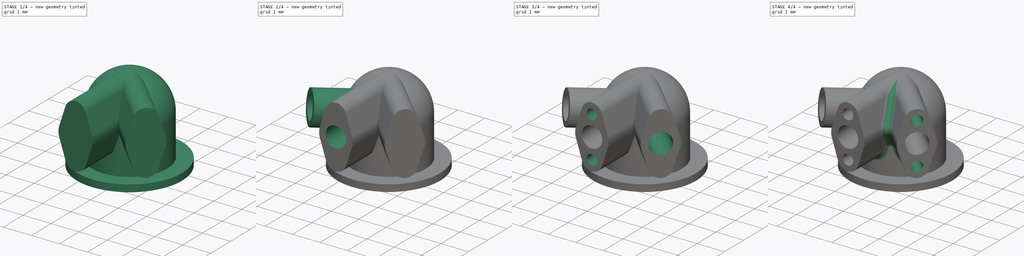
[diagram: build sequence overview — one tinted view per stage of 4, left to right]
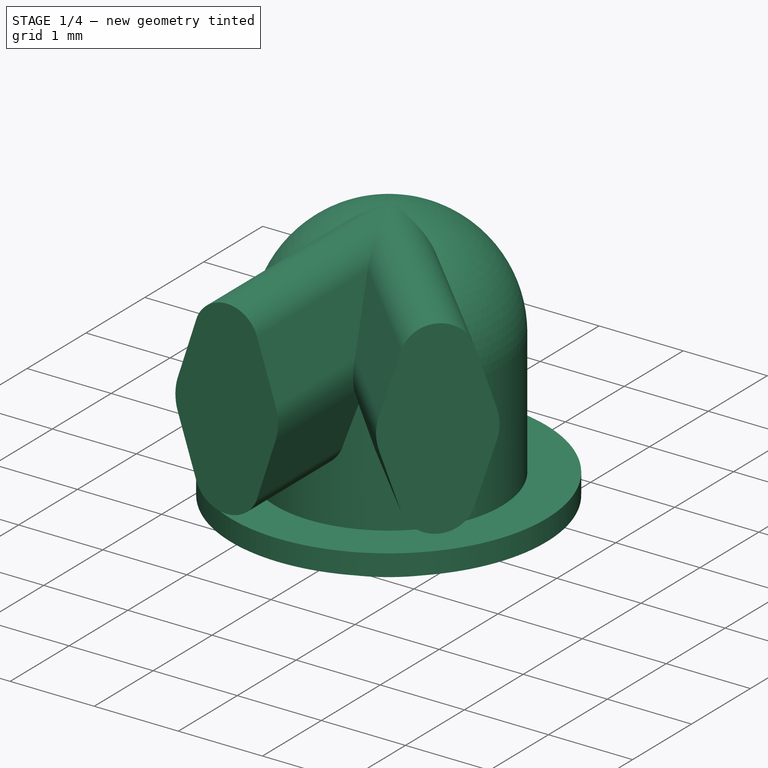
[diagram: stage 1 of 4 — iso view after this stage's code; geometry added in this stage tinted green]
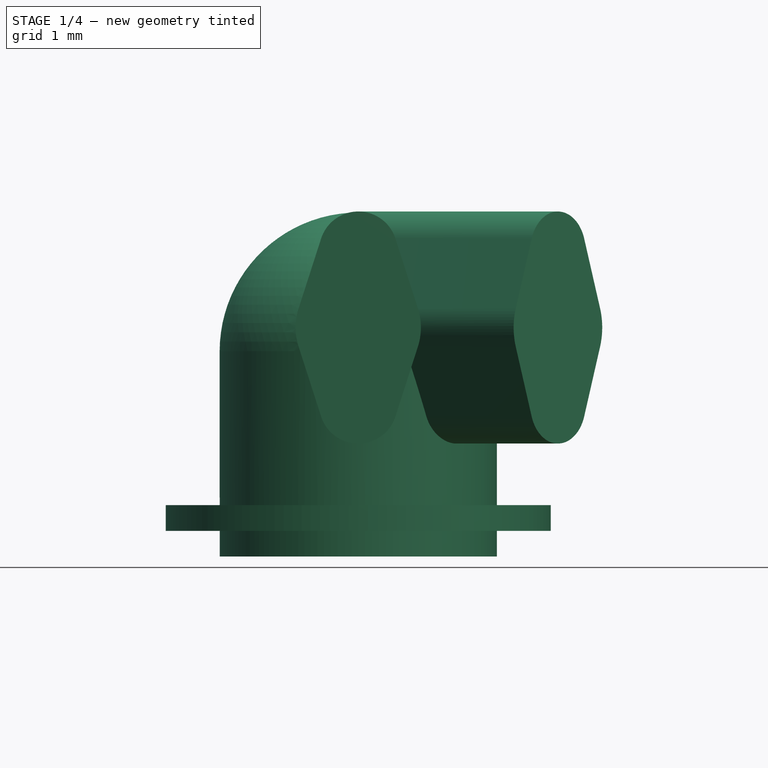
[diagram: stage 1 of 4 — front view after this stage's code; geometry added in this stage tinted green]
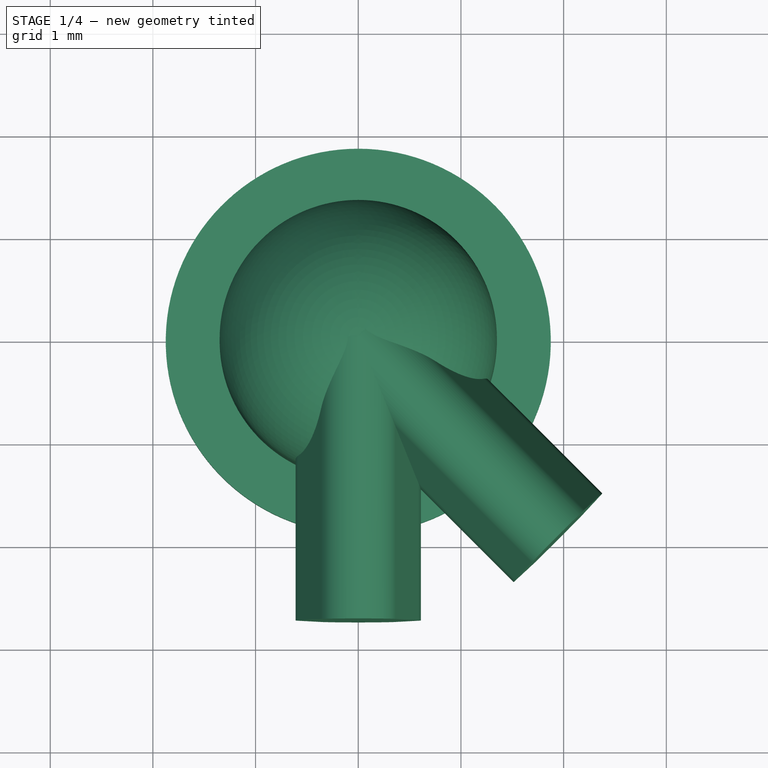
[diagram: stage 1 of 4 — top view after this stage's code; geometry added in this stage tinted green]
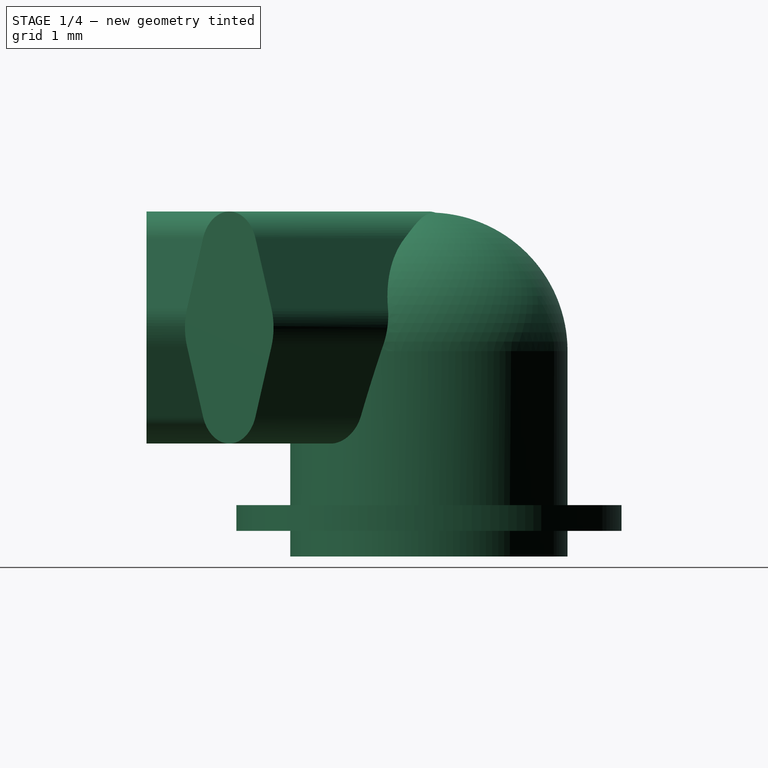
[diagram: stage 1 of 4 — right view after this stage's code; geometry added in this stage tinted green]
FCSTD DOCUMENT  (FreeCAD 1.0R39319 (Git))
Label: Mania2000
License: All rights reserved
LicenseURL: https://en.wikipedia.org/wiki/All_rights_reserved
objects: Sketcher::SketchObject×11, PartDesign::Pocket×5, PartDesign::Revolution×2, PartDesign::Pad×2, PartDesign::Groove×1, PartDesign::Fillet×1, PartDesign::Body×1
note: 56 computed .brp shape members not serialized (recipe doc carries the construction recipe); baked Part::Feature solids carry a one-line shape summary decoded from their .brp

FEATURE [Sketcher::SketchObject] Sketch  label="MainBase"
  ArcFitTolerance = 1e-06
  AttachmentSupport = -> [YZ_Plane]
  FullyConstrained = true
  MakeInternals = false
  MapMode = 5
  Placement = pos=(0,0,0) rot=(0.57735,0.57735,0.57735;2.0944rad)
  sketch-geometry (8):
    g0: LineSegment StartX=0 StartY=0 StartZ=0 EndX=1.35 EndY=0 EndZ=0
    g1: LineSegment StartX=1.35 StartY=0 StartZ=0 EndX=1.35 EndY=0.25 EndZ=0
    g2: LineSegment StartX=1.35 StartY=0.25 StartZ=0 EndX=1.875 EndY=0.25 EndZ=0
    g3: LineSegment StartX=1.875 StartY=0.25 StartZ=0 EndX=1.875 EndY=0.5 EndZ=0
    g4: LineSegment StartX=1.875 StartY=0.5 StartZ=0 EndX=1.35 EndY=0.5 EndZ=0
    g5: LineSegment StartX=1.35 StartY=0.5 StartZ=0 EndX=1.35 EndY=2 EndZ=0
    g6: ArcOfCircle CenterX=0 CenterY=2 CenterZ=0 NormalX=0 NormalY=0 NormalZ=1 AngleXU=0 Radius=1.35 StartAngle=0 EndAngle=1.5708
    g7: LineSegment StartX=0 StartY=3.35 StartZ=0 EndX=0 EndY=0 EndZ=0
  constraints (23):
    c: Coincident(g-1,g0)
    c: PointOnObject(g0,g-1)
    c: Coincident(g0,g1)
    c: Coincident(g1,g2)
    c: Horizontal(g2)
    c: Coincident(g2,g3)
    c: Vertical(g3)
    c: Coincident(g3,g4)
    c: Horizontal(g4)
    c: Coincident(g4,g5)
    c: Vertical(g5)
    c: Tangent(g5,g6) = -1.5708
    c: PointOnObject(g6,g-2)
    c: Coincident(g7,g0)
    c: Coincident(g6,g7)
    c: Vertical(g1)
    c: DistanceY(g1,g1) = 0.25
    c: DistanceX(g0,g0) = 1.35
    c: Distance(g0,g3) = 1.875
    c: DistanceY(g3,g3) = 0.25
    c: DistanceX(g-1,g4) = 1.35
    c: DistanceY(g7,g7) = 3.35
    c: PointOnObject(g6,g7)
FEATURE [Sketcher::SketchObject] Sketch001  label="MainBase001"
  ArcFitTolerance = 1e-06
  AttachmentSupport = -> [YZ_Plane]
  FullyConstrained = true
  MakeInternals = false
  MapMode = 5
  Placement = pos=(0,0,0) rot=(0.57735,0.57735,0.57735;2.0944rad)
  sketch-geometry (8):
    g0: LineSegment StartX=0 StartY=0 StartZ=0 EndX=1.35 EndY=0 EndZ=0
    g1: LineSegment StartX=1.35 StartY=0 StartZ=0 EndX=1.35 EndY=0.25 EndZ=0
    g2: LineSegment StartX=1.35 StartY=0.25 StartZ=0 EndX=1.875 EndY=0.25 EndZ=0
    g3: LineSegment StartX=1.875 StartY=0.25 StartZ=0 EndX=1.875 EndY=0.5 EndZ=0
    g4: LineSegment StartX=1.875 StartY=0.5 StartZ=0 EndX=1.35 EndY=0.5 EndZ=0
    g5: LineSegment StartX=1.35 StartY=0.5 StartZ=0 EndX=1.35 EndY=2 EndZ=0
    g6: ArcOfCircle CenterX=0 CenterY=2 CenterZ=0 NormalX=0 NormalY=0 NormalZ=1 AngleXU=0 Radius=1.35 StartAngle=0 EndAngle=1.5708
    g7: LineSegment StartX=0 StartY=3.35 StartZ=0 EndX=0 EndY=0 EndZ=0
  constraints (23):
    c: Coincident(g-1,g0)
    c: PointOnObject(g0,g-1)
    c: Coincident(g0,g1)
    c: Coincident(g1,g2)
    c: Horizontal(g2)
    c: Coincident(g2,g3)
    c: Vertical(g3)
    c: Coincident(g3,g4)
    c: Horizontal(g4)
    c: Coincident(g4,g5)
    c: Vertical(g5)
    c: Tangent(g5,g6) = -1.5708
    c: PointOnObject(g6,g-2)
    c: Coincident(g7,g0)
    c: Coincident(g6,g7)
    c: Vertical(g1)
    c: DistanceY(g1,g1) = 0.25
    c: DistanceX(g0,g0) = 1.35
    c: Distance(g0,g3) = 1.875
    c: DistanceY(g3,g3) = 0.25
    c: DistanceX(g-1,g4) = 1.35
    c: DistanceY(g7,g7) = 3.35
    c: PointOnObject(g6,g7)
FEATURE [PartDesign::Revolution] Revolution
  Angle = 360
  Angle2 = 60
  Axis = (0,0,1)
  Base = (0,0,0)
  Placement = pos=(0,0,0) rot=(1,1,1;2.0944rad)
  Profile = -> Sketch001
  ReferenceAxis = -> Sketch001 [V_Axis]
  Refine = true
  Reversed = true
  Suppressed = false
  Type = 0
FEATURE [Sketcher::SketchObject] Sketch002  label="branch_center"
  ArcFitTolerance = 1e-06
  AttachmentSupport = -> [XZ_Plane]
  FullyConstrained = true
  MakeInternals = false
  MapMode = 5
  Placement = pos=(0,0,0) rot=(1,0,0;1.5708rad)
  sketch-geometry (12):
    g0: LineSegment StartX=-0.36169 StartY=3.09653 StartZ=0 EndX=-0.580608 EndY=2.41707 EndZ=0
    g1: LineSegment StartX=-0.580608 StartY=2.04293 StartZ=0 EndX=-0.36169 EndY=1.36347 EndZ=0
    g2: LineSegment StartX=0.36169 StartY=1.36347 StartZ=0 EndX=0.580608 EndY=2.04293 EndZ=0
    g3: LineSegment StartX=0.580608 StartY=2.41707 StartZ=0 EndX=0.36169 EndY=3.09653 EndZ=0
    g4: ArcOfCircle CenterX=0 CenterY=2.98 CenterZ=0 NormalX=0 NormalY=0 NormalZ=1 AngleXU=0 Radius=0.38 StartAngle=0.311689 EndAngle=2.8299
    g5: GeomPoint [constr] X=1e-16 Y=4.21913 Z=0
    g6: ArcOfCircle CenterX=0 CenterY=1.48 CenterZ=0 NormalX=0 NormalY=0 NormalZ=1 AngleXU=0 Radius=0.38 StartAngle=3.45328 EndAngle=5.9715
    g7: GeomPoint [constr] X=0 Y=0.24087 Z=0
    g8: ArcOfCircle CenterX=0 CenterY=2.23 CenterZ=0 NormalX=0 NormalY=0 NormalZ=1 AngleXU=0 Radius=0.61 StartAngle=5.9715 EndAngle=6.59487
    g9: GeomPoint [constr] X=0.64088 Y=2.23 Z=0
    g10: ArcOfCircle CenterX=0 CenterY=2.23 CenterZ=0 NormalX=0 NormalY=0 NormalZ=1 AngleXU=0 Radius=0.61 StartAngle=2.8299 EndAngle=3.45328
    g11: GeomPoint [constr] X=-0.64088 Y=2.23 Z=0
  constraints (27):
    c: PointOnObject(g5,g3)
    c: PointOnObject(g5,g0)
    c: Tangent(g3,g4) = -1.5708
    c: Tangent(g0,g4) = -1.5708
    c: PointOnObject(g7,g2)
    c: PointOnObject(g7,g1)
    c: Tangent(g2,g6) = -1.5708
    c: Tangent(g1,g6) = -1.5708
    c: PointOnObject(g9,g2)
    c: PointOnObject(g9,g3)
    c: Tangent(g2,g8) = -1.5708
    c: Tangent(g3,g8) = -1.5708
    c: PointOnObject(g11,g1)
    c: PointOnObject(g11,g0)
    c: Tangent(g1,g10) = -1.5708
    c: Tangent(g0,g10) = -1.5708
    c: Equal(g4,g6)
    c: Equal(g8,g10)
    c: PointOnObject(g8,g-2)
    c: Coincident(g10,g8)
    c: PointOnObject(g4,g-2)
    c: PointOnObject(g6,g-2)
    c: Radius(g4) = 0.38
    c: DistanceY(g6,g4) = 1.5
    c: Radius(g8) = 0.61
    c: DistanceY(g-1,g8) = 2.23
    c: DistanceY(g8,g4) = 0.75
FEATURE [Sketcher::SketchObject] Sketch003  label="branch_left"
  ArcFitTolerance = 1e-06
  AttachmentOffset = pos=(0,0,0) rot=(0,1,0;0.785398rad)
  AttachmentSupport = -> [XZ_Plane]
  FullyConstrained = true
  MakeInternals = false
  MapMode = 5
  Placement = pos=(0,0,0) rot=(0.862856,0.357407,0.357407;1.71777rad)
  sketch-geometry (12):
    g0: LineSegment StartX=-0.36169 StartY=3.09653 StartZ=0 EndX=-0.580608 EndY=2.41707 EndZ=0
    g1: LineSegment StartX=-0.580608 StartY=2.04293 StartZ=0 EndX=-0.36169 EndY=1.36347 EndZ=0
    g2: LineSegment StartX=0.36169 StartY=1.36347 StartZ=0 EndX=0.580608 EndY=2.04293 EndZ=0
    g3: LineSegment StartX=0.580608 StartY=2.41707 StartZ=0 EndX=0.36169 EndY=3.09653 EndZ=0
    g4: ArcOfCircle CenterX=0 CenterY=2.98 CenterZ=0 NormalX=0 NormalY=0 NormalZ=1 AngleXU=0 Radius=0.38 StartAngle=0.311689 EndAngle=2.8299
    g5: GeomPoint [constr] X=1e-16 Y=4.21913 Z=0
    g6: ArcOfCircle CenterX=0 CenterY=1.48 CenterZ=0 NormalX=0 NormalY=0 NormalZ=1 AngleXU=0 Radius=0.38 StartAngle=3.45328 EndAngle=5.9715
    g7: GeomPoint [constr] X=0 Y=0.24087 Z=0
    g8: ArcOfCircle CenterX=0 CenterY=2.23 CenterZ=0 NormalX=0 NormalY=0 NormalZ=1 AngleXU=0 Radius=0.61 StartAngle=5.9715 EndAngle=6.59487
    g9: GeomPoint [constr] X=0.64088 Y=2.23 Z=0
    g10: ArcOfCircle CenterX=0 CenterY=2.23 CenterZ=0 NormalX=0 NormalY=0 NormalZ=1 AngleXU=0 Radius=0.61 StartAngle=2.8299 EndAngle=3.45328
    g11: GeomPoint [constr] X=-0.64088 Y=2.23 Z=0
  constraints (27):
    c: PointOnObject(g5,g3)
    c: PointOnObject(g5,g0)
    c: Tangent(g3,g4) = -1.5708
    c: Tangent(g0,g4) = -1.5708
    c: PointOnObject(g7,g2)
    c: PointOnObject(g7,g1)
    c: Tangent(g2,g6) = -1.5708
    c: Tangent(g1,g6) = -1.5708
    c: PointOnObject(g9,g2)
    c: PointOnObject(g9,g3)
    c: Tangent(g2,g8) = -1.5708
    c: Tangent(g3,g8) = -1.5708
    c: PointOnObject(g11,g1)
    c: PointOnObject(g11,g0)
    c: Tangent(g1,g10) = -1.5708
    c: Tangent(g0,g10) = -1.5708
    c: Equal(g4,g6)
    c: Equal(g8,g10)
    c: PointOnObject(g8,g-2)
    c: Coincident(g10,g8)
    c: PointOnObject(g4,g-2)
    c: PointOnObject(g6,g-2)
    c: Radius(g4) = 0.38
    c: DistanceY(g6,g4) = 1.5
    c: Radius(g8) = 0.61
    c: DistanceY(g-1,g8) = 2.23
    c: DistanceY(g8,g4) = 0.75
FEATURE [PartDesign::Pad] Pad  label="b_center"
  BaseFeature = -> Revolution
  Direction = (0,-1,2e-16)
  Length = 2.75
  Length2 = 10
  Placement = pos=(0,0,0) rot=(1,1,1;2.0944rad)
  Profile = -> Sketch002
  ReferenceAxis = -> Sketch002 [N_Axis]
  Refine = true
  Suppressed = false
  Type = 0
FEATURE [PartDesign::Pad] Pad001  label="b_left"
  BaseFeature = -> Pad
  Direction = (0.707107,-0.707107,1e-16)
  Length = 2.75
  Length2 = 10
  Placement = pos=(0,0,0) rot=(1,1,1;2.0944rad)
  Profile = -> Sketch003
  ReferenceAxis = -> Sketch003 [N_Axis]
  Refine = true
  Suppressed = false
  Type = 0
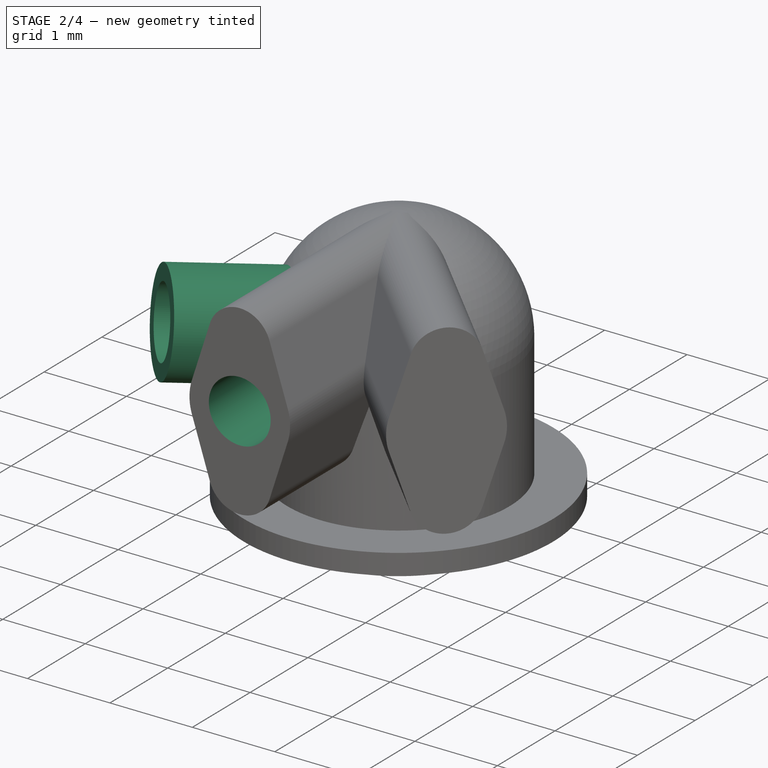
[diagram: stage 2 of 4 — iso view after this stage's code; geometry added in this stage tinted green]
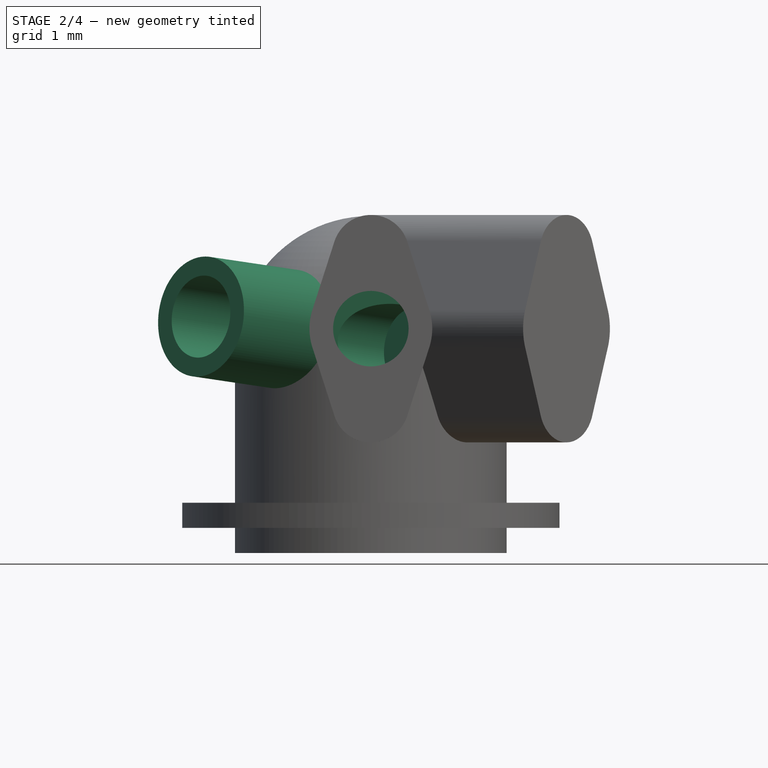
[diagram: stage 2 of 4 — front view after this stage's code; geometry added in this stage tinted green]
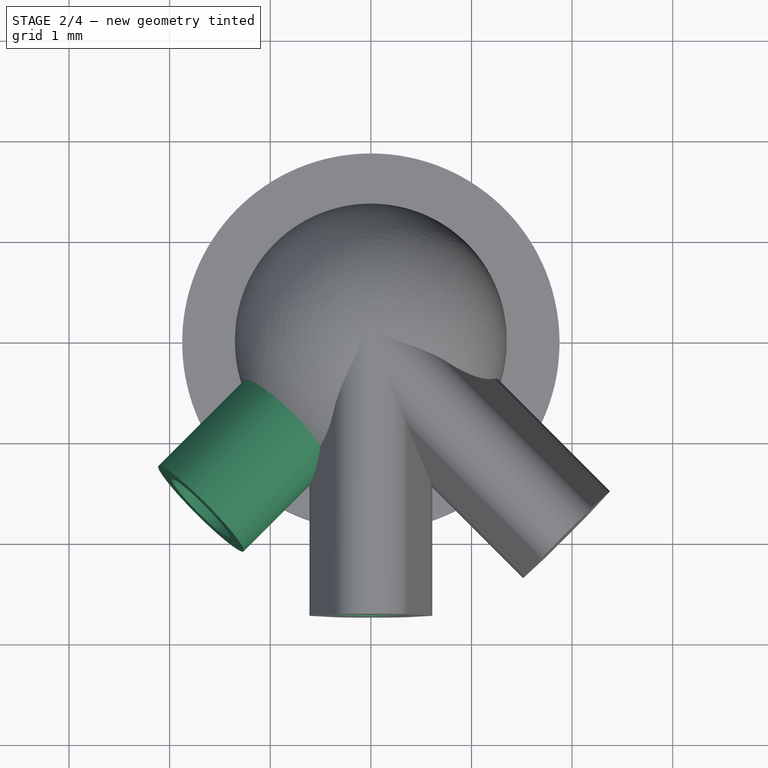
[diagram: stage 2 of 4 — top view after this stage's code; geometry added in this stage tinted green]
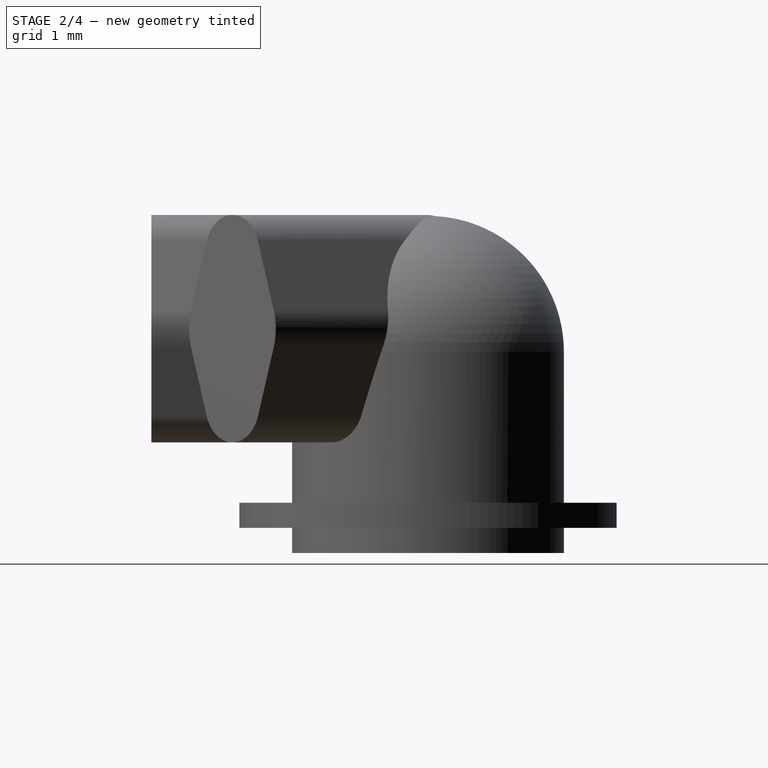
[diagram: stage 2 of 4 — right view after this stage's code; geometry added in this stage tinted green]
FEATURE [Sketcher::SketchObject] Sketch004
  ArcFitTolerance = 1e-06
  AttachmentOffset = pos=(0,0,0) rot=(0,1,0;0.785398rad)
  AttachmentSupport = -> [XZ_Plane]
  FullyConstrained = true
  MakeInternals = false
  MapMode = 5
  Placement = pos=(0,0,0) rot=(0.862856,0.357407,0.357407;1.71777rad)
  sketch-geometry (5):
    g0: LineSegment [constr] StartX=0 StartY=2.09913 StartZ=0 EndX=-2.38685 EndY=2.35 EndZ=0
    g1: LineSegment StartX=0 StartY=2.09913 StartZ=0 EndX=0.0627171 EndY=2.69584 EndZ=0
    g2: LineSegment StartX=0.0627171 StartY=2.69584 StartZ=0 EndX=-2.32414 EndY=2.94671 EndZ=0
    g3: LineSegment StartX=-2.32414 StartY=2.94671 StartZ=0 EndX=-2.38685 EndY=2.35 EndZ=0
    g4: LineSegment StartX=-2.38685 StartY=2.35 StartZ=0 EndX=0 EndY=2.09913 EndZ=0
  constraints (14):
    c: Angle(g0,g-1) = 0.10472
    c: PointOnObject(g0,g-2)
    c: DistanceY(g-1,g0) = 2.35
    c: Coincident(g0,g1)
    c: Coincident(g1,g2)
    c: Coincident(g2,g3)
    c: Coincident(g3,g0)
    c: Coincident(g3,g4)
    c: Coincident(g4,g1)
    c: Perpendicular(g4,g3)
    c: Parallel(g2,g4)
    c: Parallel(g3,g1)
    c: Distance(g3,g3) = 0.6
    c: Distance(g2,g2) = 2.4
FEATURE [PartDesign::Revolution] Revolution001
  Angle = 360
  Angle2 = 60
  Axis = (0.703233,0.703233,-0.104528)
  Base = (-1.68776,-1.68776,2.35)
  BaseFeature = -> Pad001
  Placement = pos=(0,0,0) rot=(1,1,1;2.0944rad)
  Profile = -> Sketch004
  ReferenceAxis = -> Sketch004 [Edge4]
  Refine = true
  Suppressed = false
  Type = 0
FEATURE [Sketcher::SketchObject] Sketch005
  ArcFitTolerance = 1e-06
  AttachmentSupport = -> [Revolution001]
  ExternalGeometry = -> [Revolution001]
  FullyConstrained = true
  MakeInternals = false
  MapMode = 5
  Placement = pos=(-1.84206,-1.84206,0.273804) rot=(-0.644821,-0.267094,0.716147;3.71833rad)
  sketch-geometry (1):
    g0: Circle CenterX=-2.08763 CenterY=0 CenterZ=0 NormalX=0 NormalY=0 NormalZ=1 AngleXU=0 Radius=0.41
  constraints (2):
    c: Coincident(g0,g-3)
    c: Diameter(g0) = 0.82
FEATURE [PartDesign::Pocket] Pocket
  BaseFeature = -> Revolution001
  Direction = (0.703233,0.703233,-0.104528)
  Length = 3
  Length2 = 5
  Placement = pos=(0,0,0) rot=(1,1,1;2.0944rad)
  Profile = -> Sketch005
  ReferenceAxis = -> Sketch005 [N_Axis]
  Refine = true
  Suppressed = false
  Type = 0
FEATURE [Sketcher::SketchObject] Sketch006
  ArcFitTolerance = 1e-06
  AttachmentSupport = -> [Pocket]
  ExternalGeometry = -> [Pocket]
  FullyConstrained = true
  MakeInternals = false
  MapMode = 5
  Placement = pos=(0,-2.75,1.8e-15) rot=(0.57735,0.57735,-0.57735;2.0944rad)
  sketch-geometry (1):
    g0: Circle CenterX=-2.23 CenterY=0 CenterZ=0 NormalX=0 NormalY=0 NormalZ=1 AngleXU=0 Radius=0.375
  constraints (2):
    c: Coincident(g0,g-3)
    c: Diameter(g0) = 0.75
FEATURE [PartDesign::Pocket] Pocket001
  BaseFeature = -> Pocket
  Direction = (0,1,0)
  Length = 3
  Length2 = 5
  Placement = pos=(0,0,0) rot=(1,1,1;2.0944rad)
  Profile = -> Sketch006
  ReferenceAxis = -> Sketch006 [N_Axis]
  Refine = true
  Suppressed = false
  Type = 0
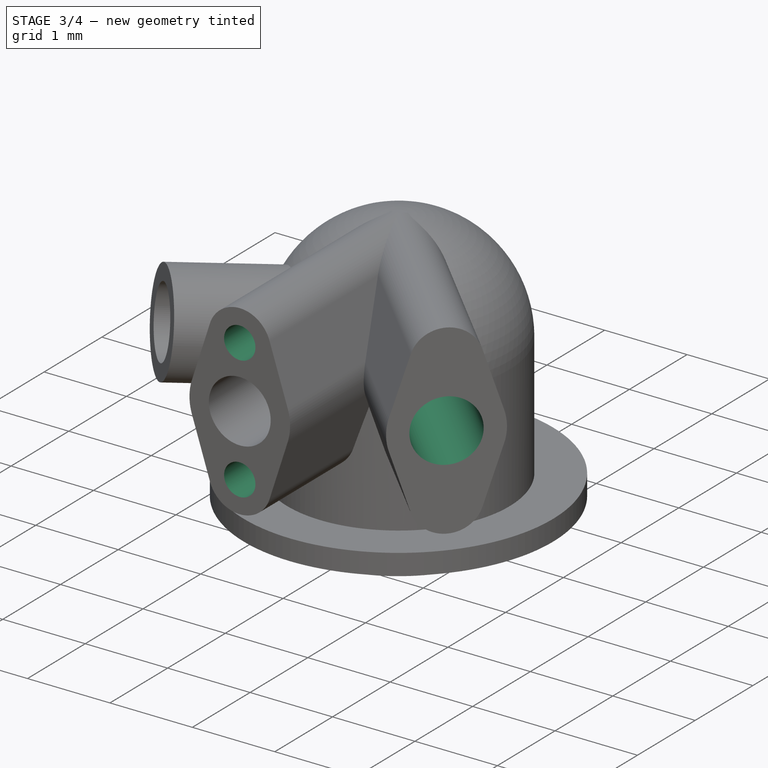
[diagram: stage 3 of 4 — iso view after this stage's code; geometry added in this stage tinted green]
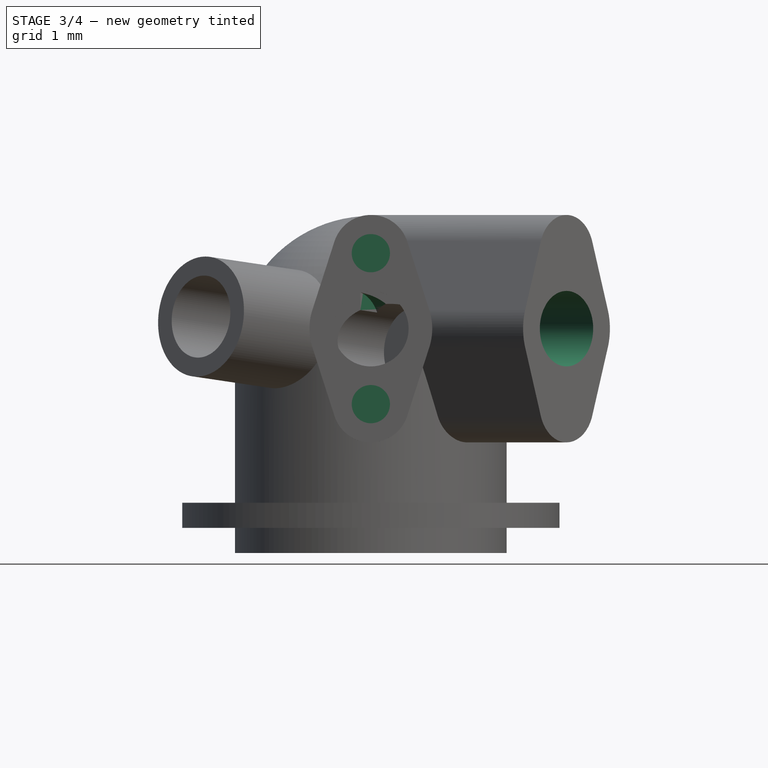
[diagram: stage 3 of 4 — front view after this stage's code; geometry added in this stage tinted green]
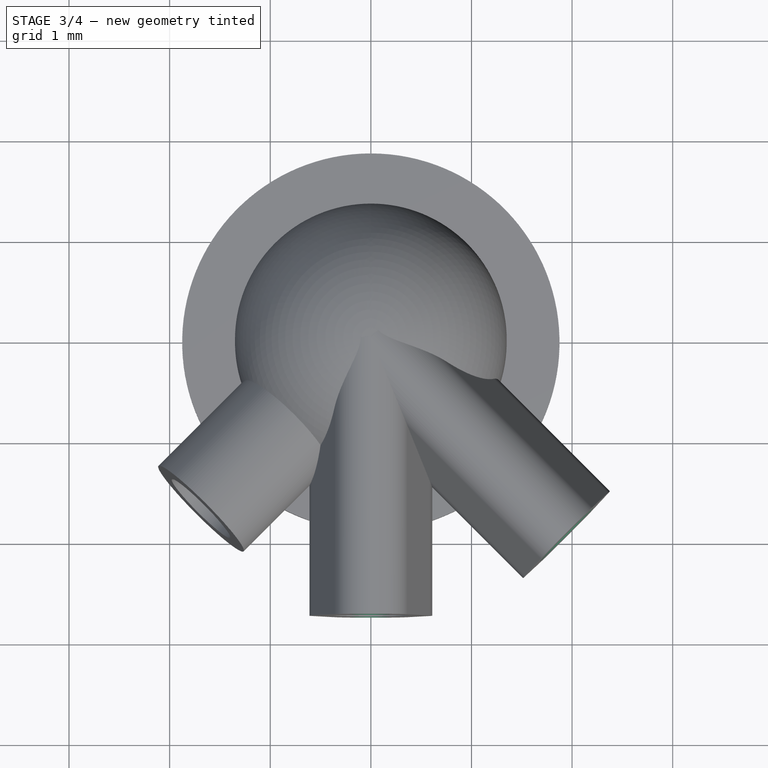
[diagram: stage 3 of 4 — top view after this stage's code; geometry added in this stage tinted green]
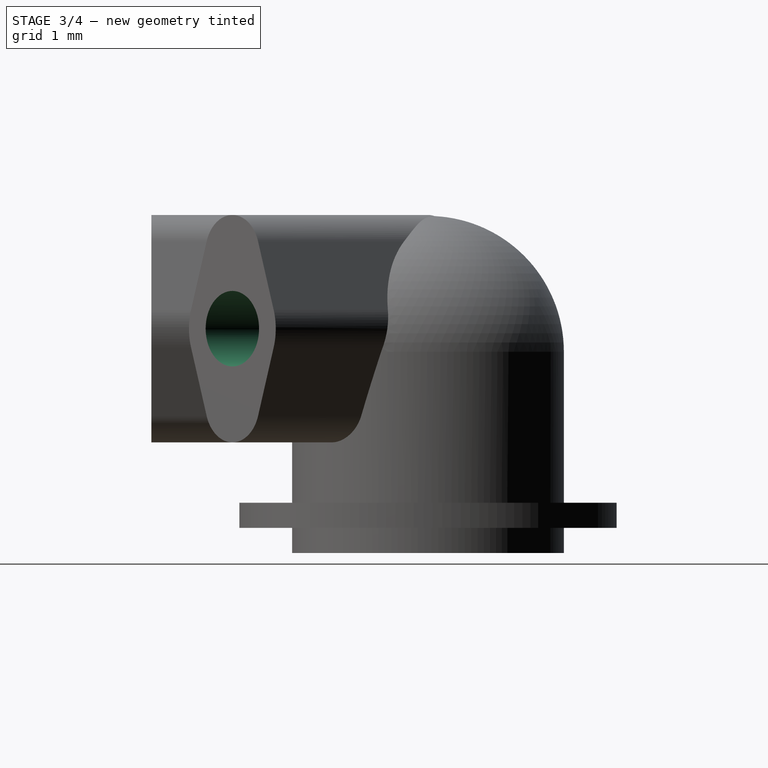
[diagram: stage 3 of 4 — right view after this stage's code; geometry added in this stage tinted green]
FEATURE [Sketcher::SketchObject] Sketch007
  ArcFitTolerance = 1e-06
  AttachmentSupport = -> [Pocket001]
  ExternalGeometry = -> [Pocket001]
  FullyConstrained = true
  MakeInternals = false
  MapMode = 5
  Placement = pos=(0,-2.75,2.7e-15) rot=(0.57735,0.57735,-0.57735;2.0944rad)
  sketch-geometry (2):
    g0: Circle CenterX=-2.98 CenterY=0 CenterZ=0 NormalX=0 NormalY=0 NormalZ=1 AngleXU=0 Radius=0.19
    g1: Circle CenterX=-1.48 CenterY=0 CenterZ=0 NormalX=0 NormalY=0 NormalZ=1 AngleXU=0 Radius=0.19
  constraints (5):
    c: Diameter(g0) = 0.38
    c: Coincident(g0,g-3)
    c: Diameter(g1) = 0.38
    c: PointOnObject(g1,g-1)
    c: DistanceX(g-3,g1) = 1.5
FEATURE [PartDesign::Pocket] Pocket002
  BaseFeature = -> Pocket001
  Direction = (0,1,0)
  Length = 1.5
  Length2 = 5
  Placement = pos=(0,0,0) rot=(1,1,1;2.0944rad)
  Profile = -> Sketch007
  ReferenceAxis = -> Sketch007 [N_Axis]
  Refine = true
  Suppressed = false
  Type = 0
FEATURE [Sketcher::SketchObject] Sketch008
  ArcFitTolerance = 1e-06
  AttachmentSupport = -> [Pocket002]
  ExternalGeometry = -> [Pocket002]
  FullyConstrained = true
  MakeInternals = false
  MapMode = 5
  Placement = pos=(1.94454,-1.94454,4.1e-15) rot=(0.357407,0.862856,-0.357407;1.71777rad)
  sketch-geometry (1):
    g0: Circle CenterX=-2.23 CenterY=0 CenterZ=0 NormalX=0 NormalY=0 NormalZ=1 AngleXU=0 Radius=0.375
  constraints (2):
    c: Diameter(g0) = 0.75
    c: Coincident(g0,g-3)
FEATURE [PartDesign::Pocket] Pocket003
  BaseFeature = -> Pocket002
  Direction = (-0.707107,0.707107,-1.5e-15)
  Length = 3
  Length2 = 5
  Placement = pos=(0,0,0) rot=(1,1,1;2.0944rad)
  Profile = -> Sketch008
  ReferenceAxis = -> Sketch008 [N_Axis]
  Refine = true
  Suppressed = false
  Type = 0
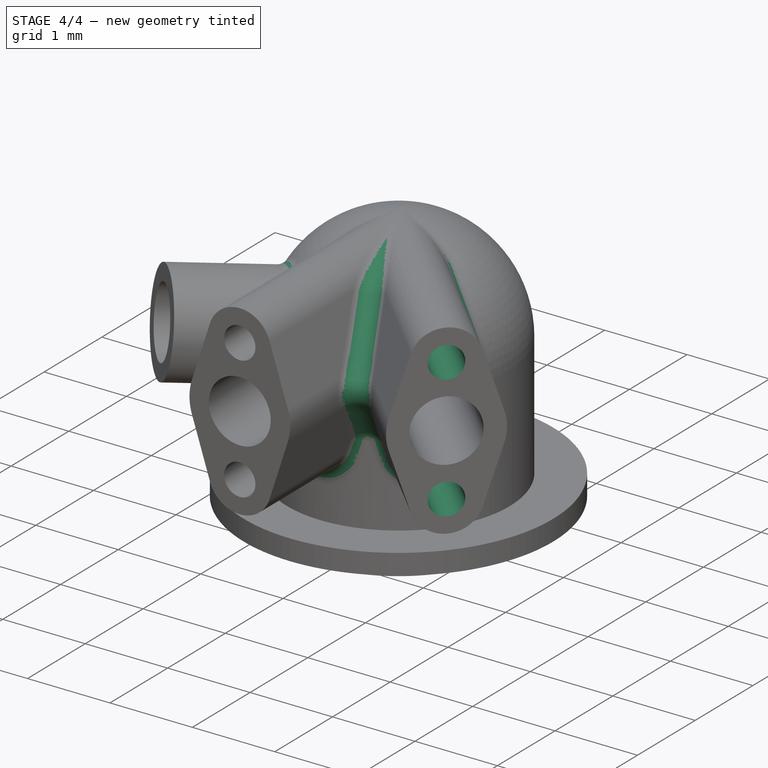
[diagram: stage 4 of 4 — iso view after this stage's code; geometry added in this stage tinted green]
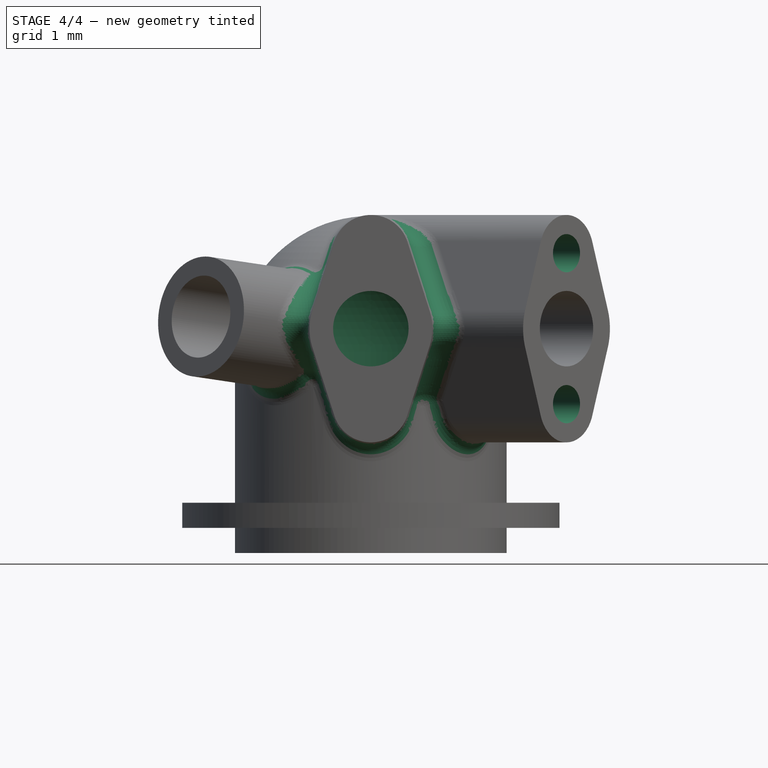
[diagram: stage 4 of 4 — front view after this stage's code; geometry added in this stage tinted green]
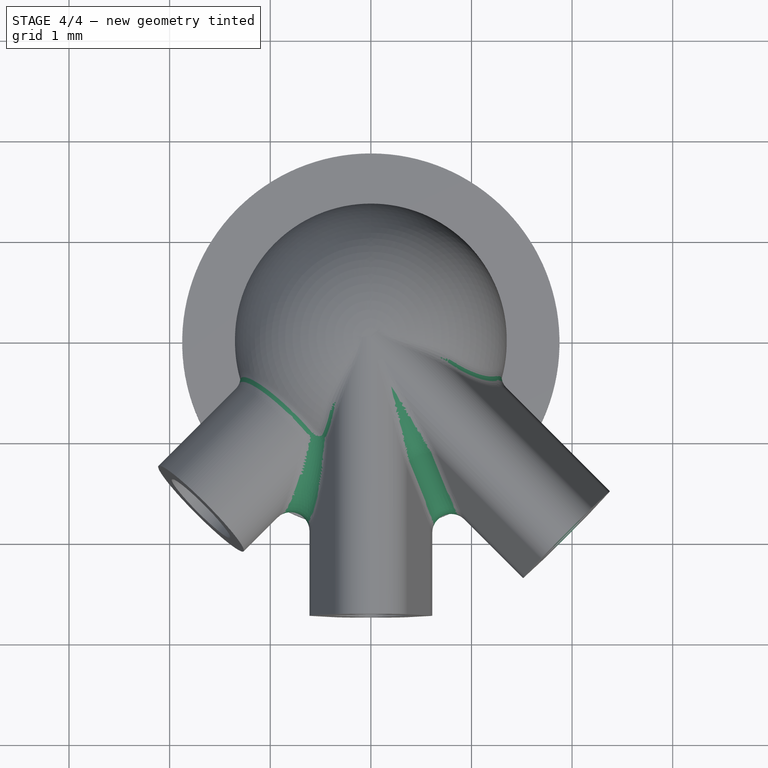
[diagram: stage 4 of 4 — top view after this stage's code; geometry added in this stage tinted green]
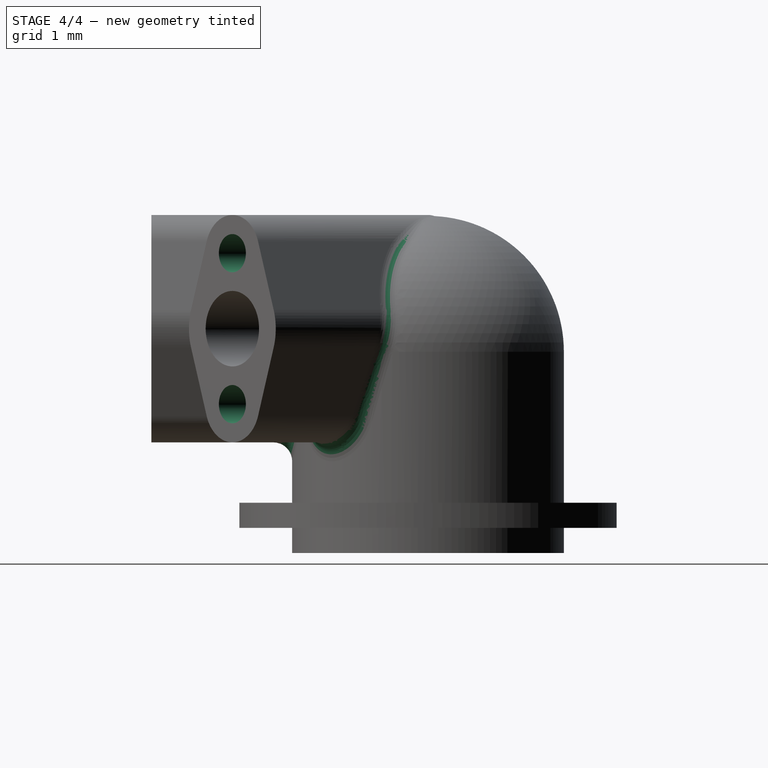
[diagram: stage 4 of 4 — right view after this stage's code; geometry added in this stage tinted green]
FEATURE [Sketcher::SketchObject] Sketch009
  ArcFitTolerance = 1e-06
  AttachmentSupport = -> [Pocket003]
  ExternalGeometry = -> [Pocket003]
  FullyConstrained = true
  MakeInternals = false
  MapMode = 5
  Placement = pos=(1.94454,-1.94454,5e-15) rot=(0.357407,0.862856,-0.357407;1.71777rad)
  sketch-geometry (2):
    g0: Circle CenterX=-2.98 CenterY=0 CenterZ=0 NormalX=0 NormalY=0 NormalZ=1 AngleXU=0 Radius=0.19
    g1: Circle CenterX=-1.48 CenterY=0 CenterZ=0 NormalX=0 NormalY=0 NormalZ=1 AngleXU=0 Radius=0.19
  constraints (4):
    c: Diameter(g0) = 0.38
    c: Coincident(g0,g-3)
    c: Diameter(g1) = 0.38
    c: Coincident(g1,g-4)
FEATURE [PartDesign::Pocket] Pocket004
  BaseFeature = -> Pocket003
  Direction = (-0.707107,0.707107,-1.9e-15)
  Length = 1.5
  Length2 = 5
  Placement = pos=(0,0,0) rot=(1,1,1;2.0944rad)
  Profile = -> Sketch009
  ReferenceAxis = -> Sketch009 [N_Axis]
  Refine = true
  Suppressed = false
  Type = 0
FEATURE [Sketcher::SketchObject] Sketch010  label="groove"
  ArcFitTolerance = 1e-06
  AttachmentSupport = -> [YZ_Plane]
  FullyConstrained = true
  MakeInternals = false
  MapMode = 5
  Placement = pos=(0,0,0) rot=(0.57735,0.57735,0.57735;2.0944rad)
  sketch-geometry (4):
    g0: LineSegment StartX=0 StartY=0 StartZ=0 EndX=1.1 EndY=0 EndZ=0
    g1: LineSegment StartX=1.1 StartY=0 StartZ=0 EndX=1.1 EndY=2 EndZ=0
    g2: ArcOfCircle CenterX=0 CenterY=2 CenterZ=0 NormalX=0 NormalY=0 NormalZ=1 AngleXU=0 Radius=1.1 StartAngle=0 EndAngle=1.5708
    g3: LineSegment StartX=0 StartY=3.1 StartZ=0 EndX=0 EndY=0 EndZ=0
  constraints (11):
    c: Coincident(g-1,g0)
    c: PointOnObject(g0,g-1)
    c: Vertical(g1)
    c: Tangent(g1,g2) = -1.5708
    c: PointOnObject(g2,g-2)
    c: Coincident(g3,g0)
    c: Coincident(g2,g3)
    c: DistanceX(g0,g0) = 1.1
    c: DistanceY(g3,g3) = 3.1
    c: PointOnObject(g2,g3)
    c: Coincident(g1,g0)
FEATURE [PartDesign::Groove] Groove
  Angle = 360
  Angle2 = 60
  Axis = (0,0,1)
  Base = (0,0,0)
  BaseFeature = -> Pocket004
  Placement = pos=(0,0,0) rot=(1,1,1;2.0944rad)
  Profile = -> Sketch010
  ReferenceAxis = -> Sketch010 [V_Axis]
  Refine = true
  Suppressed = false
  Type = 0
FEATURE [PartDesign::Fillet] Fillet
  Base = -> Groove [Edge5,Edge32,Edge39,Edge10,Edge20,Edge19,Edge2]
  BaseFeature = -> Groove
  Placement = pos=(0,0,0) rot=(1,1,1;2.0944rad)
  Radius = 0.188
  Refine = true
  SupportTransform = false
  Suppressed = false
  UseAllEdges = false
FEATURE [PartDesign::Body] Body
  AllowCompound = false
  Group = -> [Sketch,Sketch001,Revolution,Sketch002,Sketch003,Pad,Pad001,Sketch004,Revolution001,Sketch005,Pocket,Sketch006,Pocket001,Sketch007,Pocket002,Sketch008,Pocket003,Sketch009,Pocket004,Sketch010,Groove,Fillet]
  Origin = -> Origin
  Tip = -> Fillet
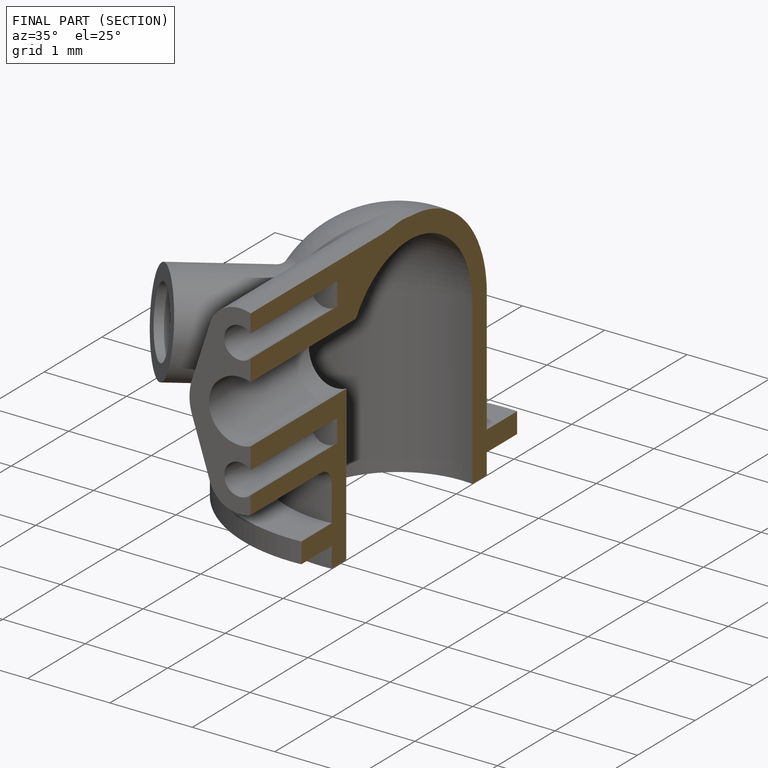
[diagram: finished part — half-section view (interior)]
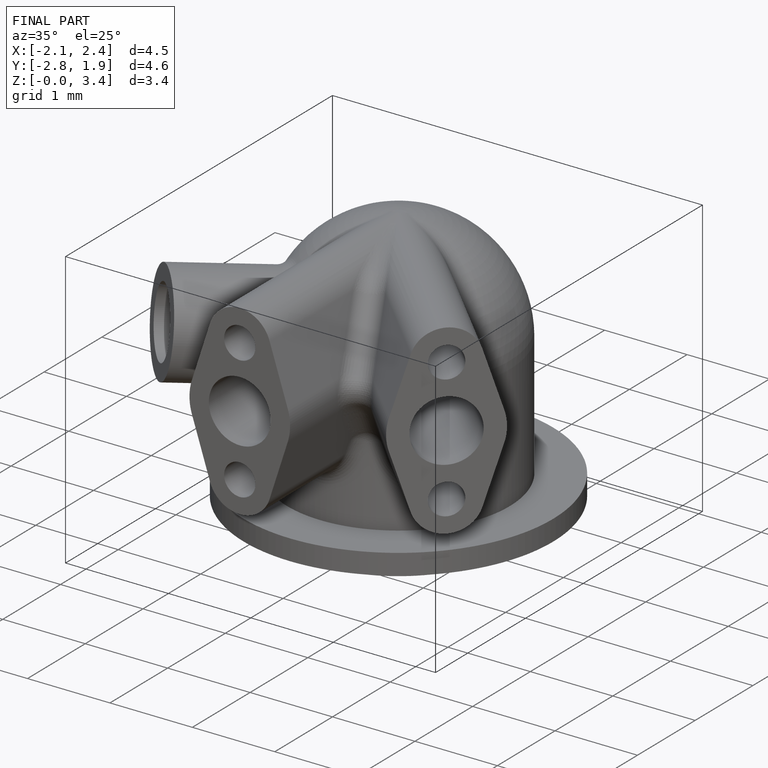
[diagram: finished part — iso view with bounding-box wireframe]
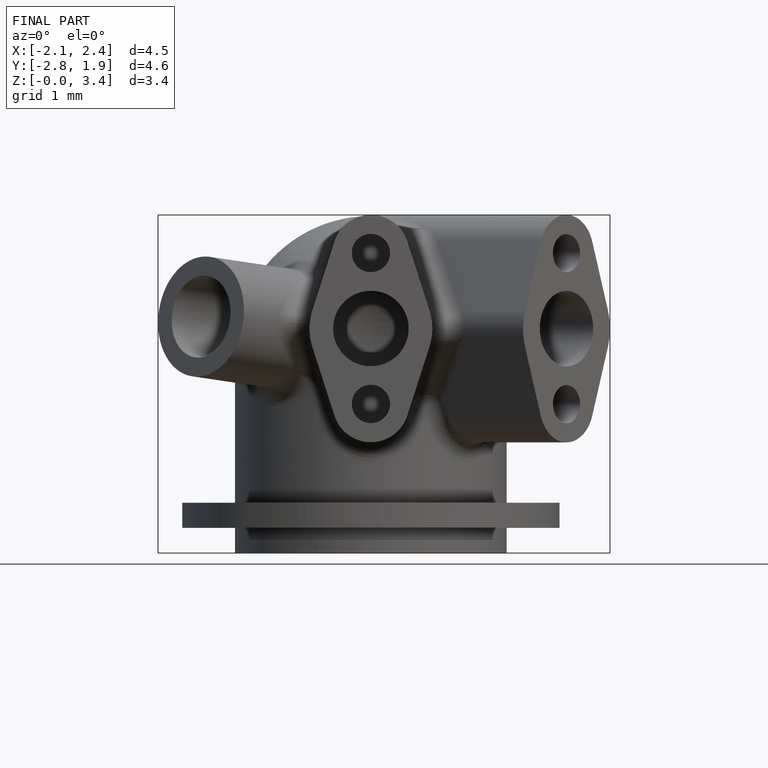
[diagram: finished part — front view with bounding-box wireframe]
